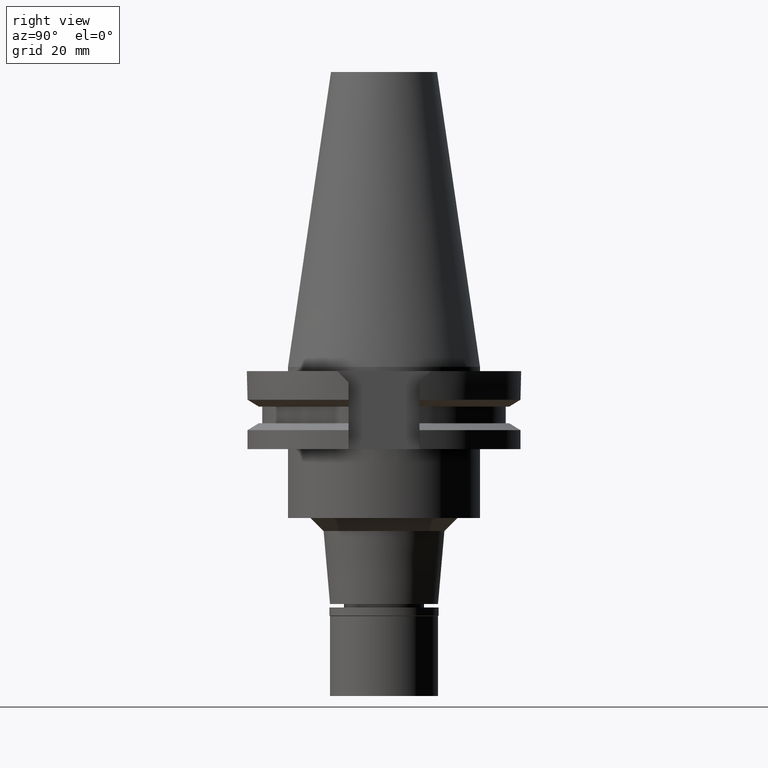
[diagram: clean part render]
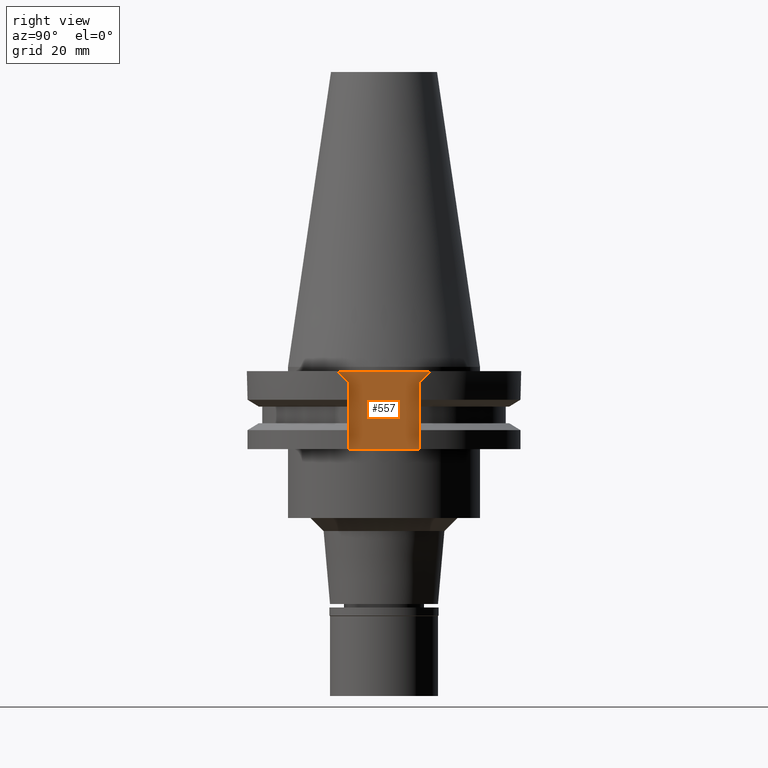
[diagram: same view with one face highlighted and labeled with its STEP entity id]
A machine part, right view. The second image highlights one B-rep face of the part: STEP entity #557.
In plain terms, the highlighted planar face has unit normal (1, 0, 0).
Its self-contained STEP definition (entity closure, byte-faithful):
#147 = CARTESIAN_POINT ( 'NONE',  ( 22.57000000000000028, -8.189999999999999503, -3.700000000000000178 ) ) ;
#388 = CARTESIAN_POINT ( 'NONE',  ( 22.57000000000000028, 10.89000000000000057, -1.000000000000000000 ) ) ;
#454 = EDGE_CURVE ( 'NONE', #3114, #636, #2713, .T. ) ;
#518 = VERTEX_POINT ( 'NONE', #3272 ) ;
#525 = CARTESIAN_POINT ( 'NONE',  ( 22.57000000000000028, 10.89000000000000057, -1.000000000000000000 ) ) ;
#557 = ADVANCED_FACE ( 'NONE', ( #2179 ), #668, .T. ) ;
#601 = LINE ( 'NONE', #388, #3235 ) ;
#615 = VERTEX_POINT ( 'NONE', #2289 ) ;
#636 = VERTEX_POINT ( 'NONE', #3333 ) ;
#668 = PLANE ( 'NONE',  #2829 ) ;
#679 = LINE ( 'NONE', #147, #2587 ) ;
#844 = DIRECTION ( 'NONE',  ( 0.0000000000000000000, 0.0000000000000000000, 1.000000000000000000 ) ) ;
#919 = EDGE_CURVE ( 'NONE', #615, #3114, #2786, .T. ) ;
#989 = LINE ( 'NONE', #3111, #2809 ) ;
#1096 = VERTEX_POINT ( 'NONE', #525 ) ;
#1132 = ORIENTED_EDGE ( 'NONE', *, *, #454, .F. ) ;
#1236 = ORIENTED_EDGE ( 'NONE', *, *, #1946, .F. ) ;
#1374 = CARTESIAN_POINT ( 'NONE',  ( 22.57000000000000028, 0.0000000000000000000, 0.0000000000000000000 ) ) ;
#1422 = EDGE_CURVE ( 'NONE', #1096, #615, #989, .T. ) ;
#1461 = VECTOR ( 'NONE', #1679, 1000.000000000000000 ) ;
#1608 = CARTESIAN_POINT ( 'NONE',  ( 22.57000000000000028, -8.189999999999999503, -3.700000000000000178 ) ) ;
#1613 = CARTESIAN_POINT ( 'NONE',  ( 22.57000000000000028, 8.189999999999999503, -3.700000000000000178 ) ) ;
#1629 = ORIENTED_EDGE ( 'NONE', *, *, #1422, .F. ) ;
#1679 = DIRECTION ( 'NONE',  ( 0.0000000000000000000, 0.0000000000000000000, -1.000000000000000000 ) ) ;
#1680 = DIRECTION ( 'NONE',  ( 0.0000000000000000000, -1.000000000000000000, 0.0000000000000000000 ) ) ;
#1746 = VERTEX_POINT ( 'NONE', #1608 ) ;
#1798 = CARTESIAN_POINT ( 'NONE',  ( 22.57000000000000028, 8.189999999999999503, -19.05000000000000071 ) ) ;
#1811 = DIRECTION ( 'NONE',  ( 0.0000000000000000000, -0.7071067811865474617, -0.7071067811865474617 ) ) ;
#1946 = EDGE_CURVE ( 'NONE', #1746, #518, #679, .T. ) ;
#1969 = ORIENTED_EDGE ( 'NONE', *, *, #3321, .T. ) ;
#1979 = ORIENTED_EDGE ( 'NONE', *, *, #2723, .F. ) ;
#2116 = LINE ( 'NONE', #3152, #3137 ) ;
#2179 = FACE_OUTER_BOUND ( 'NONE', #2899, .T. ) ;
#2212 = DIRECTION ( 'NONE',  ( 0.0000000000000000000, -0.7071067811865474617, 0.7071067811865474617 ) ) ;
#2289 = CARTESIAN_POINT ( 'NONE',  ( 22.57000000000000028, 8.189999999999999503, -3.700000000000000178 ) ) ;
#2417 = DIRECTION ( 'NONE',  ( 1.000000000000000000, 0.0000000000000000000, 0.0000000000000000000 ) ) ;
#2418 = ORIENTED_EDGE ( 'NONE', *, *, #919, .F. ) ;
#2432 = DIRECTION ( 'NONE',  ( 0.0000000000000000000, -1.000000000000000000, 0.0000000000000000000 ) ) ;
#2587 = VECTOR ( 'NONE', #2212, 1000.000000000000114 ) ;
#2713 = LINE ( 'NONE', #2966, #3260 ) ;
#2723 = EDGE_CURVE ( 'NONE', #636, #1746, #2116, .T. ) ;
#2786 = LINE ( 'NONE', #1613, #1461 ) ;
#2809 = VECTOR ( 'NONE', #1811, 1000.000000000000114 ) ;
#2829 = AXIS2_PLACEMENT_3D ( 'NONE', #1374, #2417, #3210 ) ;
#2899 = EDGE_LOOP ( 'NONE', ( #2418, #1629, #1969, #1236, #1979, #1132 ) ) ;
#2966 = CARTESIAN_POINT ( 'NONE',  ( 22.57000000000000028, 8.189999999999999503, -19.05000000000000071 ) ) ;
#3111 = CARTESIAN_POINT ( 'NONE',  ( 22.57000000000000028, 10.89000000000000057, -1.000000000000000000 ) ) ;
#3114 = VERTEX_POINT ( 'NONE', #1798 ) ;
#3137 = VECTOR ( 'NONE', #844, 1000.000000000000000 ) ;
#3152 = CARTESIAN_POINT ( 'NONE',  ( 22.57000000000000028, -8.189999999999999503, -19.05000000000000071 ) ) ;
#3210 = DIRECTION ( 'NONE',  ( 0.0000000000000000000, 1.000000000000000000, 0.0000000000000000000 ) ) ;
#3235 = VECTOR ( 'NONE', #2432, 1000.000000000000000 ) ;
#3260 = VECTOR ( 'NONE', #1680, 1000.000000000000000 ) ;
#3272 = CARTESIAN_POINT ( 'NONE',  ( 22.57000000000000028, -10.89000000000000057, -1.000000000000000000 ) ) ;
#3321 = EDGE_CURVE ( 'NONE', #1096, #518, #601, .T. ) ;
#3333 = CARTESIAN_POINT ( 'NONE',  ( 22.57000000000000028, -8.189999999999999503, -19.05000000000000071 ) ) ;